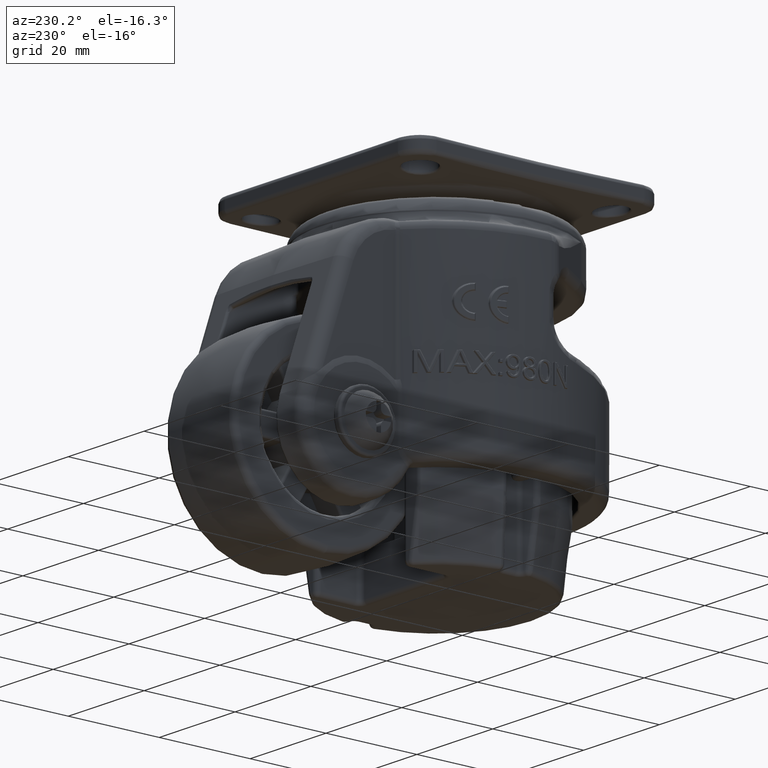
[diagram: clean part render]
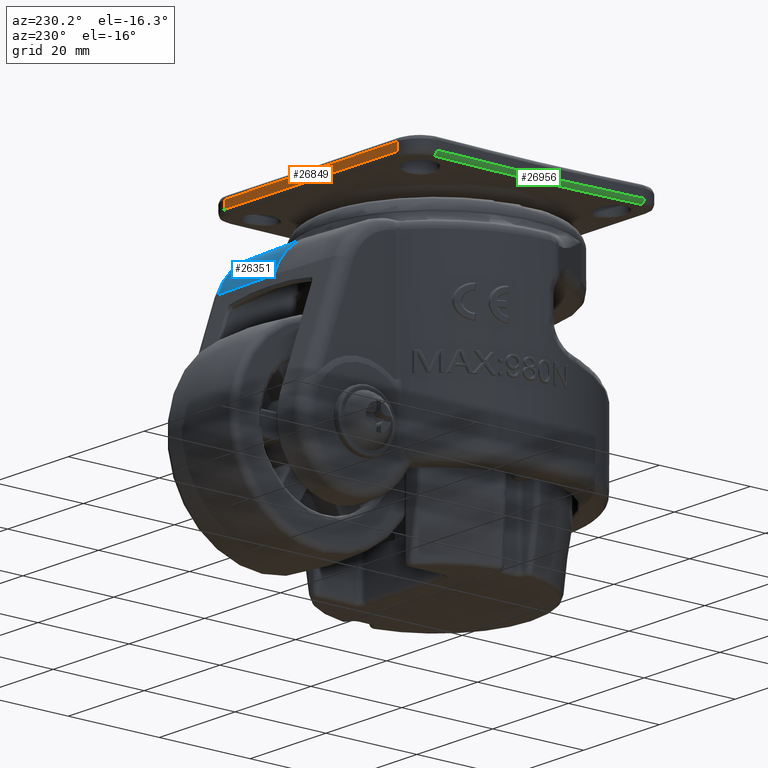
[diagram: same view with three faces highlighted in distinct colors, each labeled with its STEP entity id]
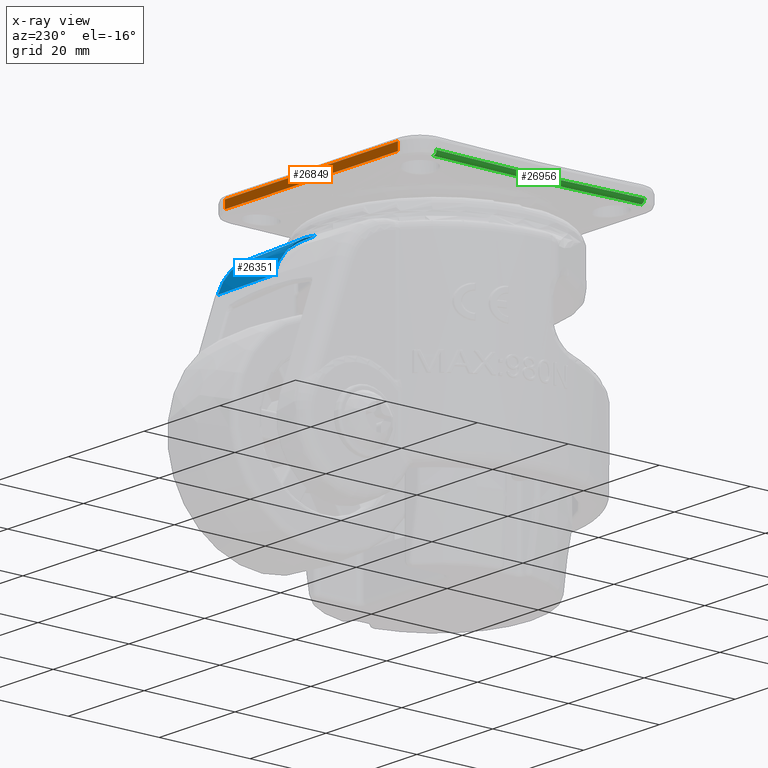
[diagram: x-ray of the same camera — body ghosted, the three highlighted faces saturated]
A machine part, auxiliary view with three faces highlighted in distinct colors.
The next image is the same camera in x-ray (body ghosted, the three faces saturated) — at least one of them is partly hidden behind the body in this view.
Their STEP definitions:

[orange] entity #26849 — the highlighted planar face has unit normal (0, 1, 0).
#2781=B_SPLINE_CURVE_WITH_KNOTS('',3,(#79250,#79251,#79252,#79253,#79254,
#79255,#79256,#79257,#79258,#79259,#79260,#79261,#79262,#79263,#79264,#79265,
#79266,#79267),.UNSPECIFIED.,.F.,.F.,(4,2,2,2,2,2,2,2,4),(0.,0.165469812225216,
0.356299101858044,0.500000722665542,0.674332169142147,0.824515417149564,
0.869565217391304,0.985094187170571,1.),.UNSPECIFIED.);
#2782=B_SPLINE_CURVE_WITH_KNOTS('',3,(#79270,#79271,#79272,#79273,#79274,
#79275,#79276),.UNSPECIFIED.,.F.,.F.,(4,3,4),(0.,0.499996307109869,1.),
 .UNSPECIFIED.);
#3174=PLANE('',#29462);
#4102=LINE('',#79248,#5066);
#4103=LINE('',#79269,#5067);
#5066=VECTOR('',#35483,1.7448966188433);
#5067=VECTOR('',#35484,1.7450908023597);
#7297=FACE_OUTER_BOUND('',#9045,.T.);
#9045=EDGE_LOOP('',(#16620,#16621,#16622,#16623));
#16620=ORIENTED_EDGE('',*,*,#21088,.T.);
#16621=ORIENTED_EDGE('',*,*,#21089,.T.);
#16622=ORIENTED_EDGE('',*,*,#21090,.T.);
#16623=ORIENTED_EDGE('',*,*,#21091,.T.);
#21088=EDGE_CURVE('',#23805,#23806,#4102,.T.);
#21089=EDGE_CURVE('',#23806,#23807,#2781,.T.);
#21090=EDGE_CURVE('',#23807,#23808,#4103,.T.);
#21091=EDGE_CURVE('',#23808,#23805,#2782,.T.);
#23805=VERTEX_POINT('',#79246);
#23806=VERTEX_POINT('',#79247);
#23807=VERTEX_POINT('',#79249);
#23808=VERTEX_POINT('',#79268);
#26849=ADVANCED_FACE('',(#7297),#3174,.T.);
#29462=AXIS2_PLACEMENT_3D('',#79245,#35481,#35482);
#35481=DIRECTION('center_axis',(0.,1.,0.));
#35482=DIRECTION('ref_axis',(0.,0.,-1.));
#35483=DIRECTION('',(0.,0.,-1.));
#35484=DIRECTION('',(0.,0.,1.));
#79245=CARTESIAN_POINT('Origin',(-16.4732984111631,20.7032248653305,37.4738037996507));
#79246=CARTESIAN_POINT('',(33.8755387981392,20.7032248653305,18.230190703546));
#79247=CARTESIAN_POINT('',(33.8755387981392,20.7032248653305,16.4852940847027));
#79248=CARTESIAN_POINT('',(33.8755387981392,20.7032248653305,37.4738037996507));
#79249=CARTESIAN_POINT('',(-11.8221356204654,20.7032248653305,16.4715453922281));
#79250=CARTESIAN_POINT('Ctrl Pts',(33.8755387981392,20.7032248653305,16.4852940847027));
#79251=CARTESIAN_POINT('Ctrl Pts',(31.35501457006,20.7032248653305,16.4702202875834));
#79252=CARTESIAN_POINT('Ctrl Pts',(28.8344935833261,20.7032249420049,16.4584616257449));
#79253=CARTESIAN_POINT('Ctrl Pts',(23.4071692357886,20.7032237844586,16.4388899711993));
#79254=CARTESIAN_POINT('Ctrl Pts',(20.5003652244757,20.7032221297623,16.4319560786226));
#79255=CARTESIAN_POINT('Ctrl Pts',(15.4046084182842,20.7032176912324,16.4241607293681));
#79256=CARTESIAN_POINT('Ctrl Pts',(13.2156597329096,20.7032153567104,16.422220374158));
#79257=CARTESIAN_POINT('Ctrl Pts',(8.37120764508329,20.7032113203994,16.4200273903639));
#79258=CARTESIAN_POINT('Ctrl Pts',(5.71567679897292,20.7032100116818,16.4202191078728));
#79259=CARTESIAN_POINT('Ctrl Pts',(0.772467524925848,20.7032124064208,16.42544533591));
#79260=CARTESIAN_POINT('Ctrl Pts',(-1.51521101455265,20.703215682146,16.4298049433254));
#79261=CARTESIAN_POINT('Ctrl Pts',(-4.48911184516033,20.7032204991226,16.4390644412167));
#79262=CARTESIAN_POINT('Ctrl Pts',(-5.17533603435959,20.7032216136618,16.4414500224505));
#79263=CARTESIAN_POINT('Ctrl Pts',(-7.6213645561806,20.7032249961005,16.4509229850987));
#79264=CARTESIAN_POINT('Ctrl Pts',(-9.38116893726732,20.7032248590407,16.4588768394186));
#79265=CARTESIAN_POINT('Ctrl Pts',(-11.3680275447412,20.7032248655091,16.4691425249283));
#79266=CARTESIAN_POINT('Ctrl Pts',(-11.5950815750752,20.7032248653305,16.4703345496273));
#79267=CARTESIAN_POINT('Ctrl Pts',(-11.8221356204654,20.7032248653305,16.4715453922281));
#79268=CARTESIAN_POINT('',(-11.8221356204654,20.7032248653305,18.2166361945878));
#79269=CARTESIAN_POINT('',(-11.8221356204654,20.7032248653305,37.4738037996507));
#79270=CARTESIAN_POINT('Ctrl Pts',(-11.8221356204654,20.7032248653305,18.2166361945878));
#79271=CARTESIAN_POINT('Ctrl Pts',(-4.20599563154104,20.7032248653305,18.1810443432043));
#79272=CARTESIAN_POINT('Ctrl Pts',(3.41039426982293,20.7032248653305,18.1934868174966));
#79273=CARTESIAN_POINT('Ctrl Pts',(11.0267098687725,20.7032248653305,18.1954984725353));
#79274=CARTESIAN_POINT('Ctrl Pts',(18.6431379734198,20.7032248653305,18.1975101572894));
#79275=CARTESIAN_POINT('Ctrl Pts',(26.2593139274777,20.7032248653305,18.1891107917544));
#79276=CARTESIAN_POINT('Ctrl Pts',(33.8755387981392,20.7032248653305,18.230190703546));

[blue] entity #26351 — the highlighted conical surface has half-angle 1.5 deg.
#937=CONICAL_SURFACE('',#28653,12.7999966792559,0.0261799387799149);
#2438=B_SPLINE_CURVE_WITH_KNOTS('',3,(#65092,#65093,#65094,#65095),
 .UNSPECIFIED.,.F.,.F.,(4,4),(1.11764550295535E-5,0.999999861120427),
 .UNSPECIFIED.);
#2445=B_SPLINE_CURVE_WITH_KNOTS('',3,(#65418,#65419,#65420,#65421,#65422,
#65423,#65424,#65425,#65426,#65427,#65428,#65429,#65430,#65431,#65432,#65433,
#65434,#65435,#65436,#65437,#65438,#65439,#65440,#65441,#65442,#65443,#65444,
#65445,#65446,#65447,#65448,#65449,#65450,#65451,#65452,#65453,#65454,#65455,
#65456,#65457,#65458,#65459,#65460,#65461,#65462,#65463,#65464,#65465,#65466,
#65467,#65468,#65469,#65470,#65471,#65472,#65473,#65474,#65475,#65476,#65477,
#65478),.UNSPECIFIED.,.F.,.F.,(4,3,3,3,3,3,3,3,3,3,3,3,3,3,3,3,3,3,3,3,
4),(0.,0.0528728201026942,0.112830711117299,0.181617793075896,0.245780574850599,
0.309995476943665,0.375783971466003,0.398184977157559,0.458570128777303,
0.498774054982897,0.5,0.562527325156512,0.625994699037756,0.694070730113794,
0.750109300626047,0.822601510278171,0.87637377823904,0.912233647357117,
0.956116823678559,0.995401458969703,1.),.UNSPECIFIED.);
#3785=LINE('',#65097,#4749);
#4749=VECTOR('',#33534,4.36706665520487);
#6799=FACE_OUTER_BOUND('',#8505,.T.);
#8505=EDGE_LOOP('',(#14302,#14303,#14304,#14305,#14306));
#14302=ORIENTED_EDGE('',*,*,#19921,.F.);
#14303=ORIENTED_EDGE('',*,*,#19922,.T.);
#14304=ORIENTED_EDGE('',*,*,#19923,.F.);
#14305=ORIENTED_EDGE('',*,*,#19906,.T.);
#14306=ORIENTED_EDGE('',*,*,#19905,.T.);
#19905=EDGE_CURVE('',#23091,#23090,#2438,.T.);
#19906=EDGE_CURVE('',#23092,#23091,#3785,.T.);
#19921=EDGE_CURVE('',#23104,#23090,#24681,.T.);
#19922=EDGE_CURVE('',#23104,#23105,#2445,.T.);
#19923=EDGE_CURVE('',#23092,#23105,#24682,.T.);
#23090=VERTEX_POINT('',#65089);
#23091=VERTEX_POINT('',#65091);
#23092=VERTEX_POINT('',#65096);
#23104=VERTEX_POINT('',#65415);
#23105=VERTEX_POINT('',#65417);
#24681=CIRCLE('',#28654,13.1684986296782);
#24682=CIRCLE('',#28655,12.7687589530383);
#26351=ADVANCED_FACE('',(#6799),#937,.T.);
#28653=AXIS2_PLACEMENT_3D('',#65414,#33551,#33552);
#28654=AXIS2_PLACEMENT_3D('',#65416,#33553,#33554);
#28655=AXIS2_PLACEMENT_3D('',#65479,#33555,#33556);
#33534=DIRECTION('',(-0.999657324975557,0.0248200765152126,0.00831843882540799));
#33551=DIRECTION('center_axis',(-1.,0.,0.));
#33552=DIRECTION('ref_axis',(0.,0.,1.));
#33553=DIRECTION('center_axis',(-1.,0.,0.));
#33554=DIRECTION('ref_axis',(0.,0.,-1.));
#33555=DIRECTION('center_axis',(1.,0.,0.));
#33556=DIRECTION('ref_axis',(0.,0.,1.));
#65089=CARTESIAN_POINT('',(11.0266992208081,28.9641649491868,-1.72115441002001));
#65091=CARTESIAN_POINT('',(21.9265700283018,28.6630462527609,-1.72033563895281));
#65092=CARTESIAN_POINT('Ctrl Pts',(21.9265677740616,28.6628815348712,-1.7198440650764));
#65093=CARTESIAN_POINT('Ctrl Pts',(18.2932790457329,28.7631385366324,-1.71957913541645));
#65094=CARTESIAN_POINT('Ctrl Pts',(14.6599918311908,28.863507810867,-1.72001538079841));
#65095=CARTESIAN_POINT('Ctrl Pts',(11.0267031028612,28.963981824618,-1.72115441123941));
#65096=CARTESIAN_POINT('',(26.2921439596066,28.5549301248205,-1.75748291364163));
#65097=CARTESIAN_POINT('',(25.0992233234121,28.5845486558182,-1.74755627469463));
#65414=CARTESIAN_POINT('Origin',(25.0992233234121,16.4480347567526,-5.81510410683514));
#65415=CARTESIAN_POINT('',(11.0267018633934,19.6534887684303,6.95730578651104));
#65416=CARTESIAN_POINT('Origin',(11.0267015888369,16.4480347567526,-5.81510410683514));
#65417=CARTESIAN_POINT('',(26.2921439596065,15.2262065805529,6.89506273347972));
#65418=CARTESIAN_POINT('Ctrl Pts',(11.026702687063,19.6534802318253,6.95730657826148));
#65419=CARTESIAN_POINT('Ctrl Pts',(11.3104056071294,19.6625803568707,6.9473633475713));
#65420=CARTESIAN_POINT('Ctrl Pts',(11.5943630619042,19.6660526749551,6.93881471416357));
#65421=CARTESIAN_POINT('Ctrl Pts',(11.878279416733,19.6639604970512,6.93167498155964));
#65422=CARTESIAN_POINT('Ctrl Pts',(12.2002411699935,19.6615879628362,6.92357850952528));
#65423=CARTESIAN_POINT('Ctrl Pts',(12.5221500513247,19.6520598456473,6.91729517315748));
#65424=CARTESIAN_POINT('Ctrl Pts',(12.843597486107,19.6353881515134,6.91279282456565));
#65425=CARTESIAN_POINT('Ctrl Pts',(13.2123801545361,19.6162614415613,6.90762747574581));
#65426=CARTESIAN_POINT('Ctrl Pts',(13.5805558975279,19.5877317952847,6.90480927661297));
#65427=CARTESIAN_POINT('Ctrl Pts',(13.947532438502,19.5497192850892,6.90418766570537));
#65428=CARTESIAN_POINT('Ctrl Pts',(14.2898385088355,19.5142622148525,6.90360784339168));
#65429=CARTESIAN_POINT('Ctrl Pts',(14.6311015848665,19.4705505116996,6.90493910574866));
#65430=CARTESIAN_POINT('Ctrl Pts',(14.9708526603924,19.418478474629,6.90796037479291));
#65431=CARTESIAN_POINT('Ctrl Pts',(15.3108797204335,19.3663641387197,6.91098409805594));
#65432=CARTESIAN_POINT('Ctrl Pts',(15.649708064804,19.3066558874023,6.91550399402615));
#65433=CARTESIAN_POINT('Ctrl Pts',(15.9873615382236,19.2401000540537,6.92104287261713));
#65434=CARTESIAN_POINT('Ctrl Pts',(16.3332892428912,19.1719132635275,6.92671748196737));
#65435=CARTESIAN_POINT('Ctrl Pts',(16.6779847595867,19.0965382851746,6.93345968892035));
#65436=CARTESIAN_POINT('Ctrl Pts',(17.0214991662681,19.0148182562812,6.94072819663785));
#65437=CARTESIAN_POINT('Ctrl Pts',(17.138465943439,18.9869925574923,6.94320312609065));
#65438=CARTESIAN_POINT('Ctrl Pts',(17.2552959362809,18.9584315967874,6.94573897642672));
#65439=CARTESIAN_POINT('Ctrl Pts',(17.3719916749097,18.929169770471,6.94831431910336));
#65440=CARTESIAN_POINT('Ctrl Pts',(17.6865619208844,18.8502902842946,6.95525652786588));
#65441=CARTESIAN_POINT('Ctrl Pts',(17.9997391379873,18.7656850308665,6.96262130919863));
#65442=CARTESIAN_POINT('Ctrl Pts',(18.3113272741402,18.6756899237263,6.97001973301409));
#65443=CARTESIAN_POINT('Ctrl Pts',(18.5187800352313,18.6157719381077,6.97494554138148));
#65444=CARTESIAN_POINT('Ctrl Pts',(18.7255281170159,18.5534634578241,6.97988617075189));
#65445=CARTESIAN_POINT('Ctrl Pts',(18.9315063475126,18.4888544834789,6.98472564285214));
#65446=CARTESIAN_POINT('Ctrl Pts',(18.9377872759975,18.4868843512646,6.98487321368083));
#65447=CARTESIAN_POINT('Ctrl Pts',(18.9440674824198,18.4849120254256,6.98502069916877));
#65448=CARTESIAN_POINT('Ctrl Pts',(18.9503469656427,18.4829375061065,6.98516809628791));
#65449=CARTESIAN_POINT('Ctrl Pts',(19.2706217608522,18.3822303701656,6.992685845834));
#65450=CARTESIAN_POINT('Ctrl Pts',(19.5891300175473,18.2760583473292,6.99993267361086));
#65451=CARTESIAN_POINT('Ctrl Pts',(19.9057778467855,18.1647599804691,7.00646909094825));
#65452=CARTESIAN_POINT('Ctrl Pts',(20.2271862249088,18.051788330967,7.01310377813432));
#65453=CARTESIAN_POINT('Ctrl Pts',(20.5466771043208,17.9335353281377,7.01900564502673));
#65454=CARTESIAN_POINT('Ctrl Pts',(20.8641909193985,17.8103964424452,7.02371117735635));
#65455=CARTESIAN_POINT('Ctrl Pts',(21.2047608692872,17.6783158773228,7.02875839997657));
#65456=CARTESIAN_POINT('Ctrl Pts',(21.543057726373,17.5406138098491,7.03242796471176));
#65457=CARTESIAN_POINT('Ctrl Pts',(21.8790453502799,17.3978271705707,7.0341603240959));
#65458=CARTESIAN_POINT('Ctrl Pts',(22.1556223753494,17.2802886033696,7.03558636116013));
#65459=CARTESIAN_POINT('Ctrl Pts',(22.4306355650037,17.1593062399357,7.03569966359163));
#65460=CARTESIAN_POINT('Ctrl Pts',(22.7040699962215,17.0351988823396,7.03420329005894));
#65461=CARTESIAN_POINT('Ctrl Pts',(23.0577882644206,16.8746520214189,7.03226756216907));
#65462=CARTESIAN_POINT('Ctrl Pts',(23.4088583802479,16.70813315294,7.02765724129421));
#65463=CARTESIAN_POINT('Ctrl Pts',(23.7579767686786,16.5373578459675,7.01970353387737));
#65464=CARTESIAN_POINT('Ctrl Pts',(24.0169409749409,16.4106825023451,7.01380374287151));
#65465=CARTESIAN_POINT('Ctrl Pts',(24.2748338371838,16.2816668419493,7.00606833246404));
#65466=CARTESIAN_POINT('Ctrl Pts',(24.5319256596763,16.1510041513222,6.99630494203876));
#65467=CARTESIAN_POINT('Ctrl Pts',(24.7033761016145,16.0638672838962,6.98979389245732));
#65468=CARTESIAN_POINT('Ctrl Pts',(24.8744698680058,15.9759978714706,6.98238242198049));
#65469=CARTESIAN_POINT('Ctrl Pts',(25.0452771486901,15.8875935770345,6.97403136022699));
#65470=CARTESIAN_POINT('Ctrl Pts',(25.2543009460323,15.7794096562417,6.96381182723892));
#65471=CARTESIAN_POINT('Ctrl Pts',(25.4626971162212,15.6700968774624,6.95217698722901));
#65472=CARTESIAN_POINT('Ctrl Pts',(25.6704939815146,15.5598088273342,6.93904176030774));
#65473=CARTESIAN_POINT('Ctrl Pts',(25.8565157044613,15.4610779197417,6.92728298069504));
#65474=CARTESIAN_POINT('Ctrl Pts',(26.0420564305969,15.3615646037666,6.91432166512246));
#65475=CARTESIAN_POINT('Ctrl Pts',(26.2271590918787,15.2614056534408,6.90010632681752));
#65476=CARTESIAN_POINT('Ctrl Pts',(26.2488266516362,15.2496813485259,6.8984423221508));
#65477=CARTESIAN_POINT('Ctrl Pts',(26.270488242098,15.2379482389064,6.89676114800464));
#65478=CARTESIAN_POINT('Ctrl Pts',(26.2921439596065,15.2262065805529,6.8950627334797));
#65479=CARTESIAN_POINT('Origin',(26.2921439596065,16.4480347567526,-5.81510410683514));

[green] entity #26956 — the highlighted face is a freeform B-spline surface patch.
#642=(
BOUNDED_SURFACE()
B_SPLINE_SURFACE(3,2,((#80681,#80682,#80683),(#80684,#80685,#80686),(#80687,
#80688,#80689),(#80690,#80691,#80692),(#80693,#80694,#80695),(#80696,#80697,
#80698),(#80699,#80700,#80701),(#80702,#80703,#80704),(#80705,#80706,#80707),
(#80708,#80709,#80710)),.UNSPECIFIED.,.F.,.F.,.F.)
B_SPLINE_SURFACE_WITH_KNOTS((4,2,2,2,4),(3,3),(0.,0.25,0.5,0.75,1.),(0.,
1.),.UNSPECIFIED.)
GEOMETRIC_REPRESENTATION_ITEM()
RATIONAL_B_SPLINE_SURFACE(((1.,0.725708445592342,1.),(1.,0.739844256178472,
1.),(1.,0.748449401013622,1.),(1.,0.759388890731041,1.),(1.,0.761763225432459,
1.),(1.,0.761763225161841,1.),(1.,0.759388890528774,1.),(1.,0.748449400774082,
1.),(1.,0.739844255932192,1.),(1.,0.725708445592345,1.)))
REPRESENTATION_ITEM('')
SURFACE()
);
#2770=B_SPLINE_CURVE_WITH_KNOTS('',3,(#78734,#78735,#78736,#78737,#78738,
#78739,#78740,#78741,#78742,#78743,#78744,#78745,#78746),.UNSPECIFIED.,
 .F.,.F.,(4,3,3,3,4),(0.,0.249703677268069,0.500000000102878,0.750296322906377,
1.),.UNSPECIFIED.);
#2779=B_SPLINE_CURVE_WITH_KNOTS('',3,(#79191,#79192,#79193,#79194,#79195,
#79196,#79197,#79198,#79199,#79200,#79201,#79202,#79203,#79204,#79205,#79206,
#79207,#79208,#79209),.UNSPECIFIED.,.F.,.F.,(4,3,3,3,3,3,4),(0.,0.249998725887605,
0.394273317885802,0.500010990490887,0.74999946981925,0.898896862419174,
1.),.UNSPECIFIED.);
#7404=FACE_OUTER_BOUND('',#9177,.T.);
#9177=EDGE_LOOP('',(#17022,#17023,#17024,#17025));
#17022=ORIENTED_EDGE('',*,*,#21262,.T.);
#17023=ORIENTED_EDGE('',*,*,#21085,.F.);
#17024=ORIENTED_EDGE('',*,*,#21263,.F.);
#17025=ORIENTED_EDGE('',*,*,#21019,.F.);
#21019=EDGE_CURVE('',#23741,#23742,#2770,.T.);
#21085=EDGE_CURVE('',#23802,#23803,#2779,.T.);
#21262=EDGE_CURVE('',#23741,#23803,#25282,.T.);
#21263=EDGE_CURVE('',#23742,#23802,#25283,.T.);
#23741=VERTEX_POINT('',#78716);
#23742=VERTEX_POINT('',#78733);
#23802=VERTEX_POINT('',#79188);
#23803=VERTEX_POINT('',#79190);
#25282=CIRCLE('',#29679,0.872093023255813);
#25283=CIRCLE('',#29680,0.872093023255813);
#26956=ADVANCED_FACE('',(#7404),#642,.T.);
#29679=AXIS2_PLACEMENT_3D('',#80680,#35945,#35946);
#29680=AXIS2_PLACEMENT_3D('',#80711,#35947,#35948);
#35945=DIRECTION('center_axis',(1.1556203140056E-15,0.99999803503446,-0.00198240440340946));
#35946=DIRECTION('ref_axis',(1.92747068834275E-30,-0.00198240440340946,
-0.99999803503446));
#35947=DIRECTION('center_axis',(-1.85022478331454E-14,0.99999803503446,
0.00198240440341617));
#35948=DIRECTION('ref_axis',(-1.96598928723049E-29,0.00198240440341617,
-0.99999803503446));
#78716=CARTESIAN_POINT('',(-15.6476927390771,-29.6473387270439,15.6488304073646));
#78733=CARTESIAN_POINT('',(-15.6476927390772,16.0537884577049,15.6488304073648));
#78734=CARTESIAN_POINT('Ctrl Pts',(-15.6476927390772,-29.6473387270439,
15.6488304073646));
#78735=CARTESIAN_POINT('Ctrl Pts',(-15.6837157065505,-25.8431380787264,
15.6432118883168));
#78736=CARTESIAN_POINT('Ctrl Pts',(-15.7061358539403,-22.0389433349496,
15.5652717758004));
#78737=CARTESIAN_POINT('Ctrl Pts',(-15.7204973855042,-18.2352440083695,
15.5064948663133));
#78738=CARTESIAN_POINT('Ctrl Pts',(-15.7348930026615,-14.4225169991867,
15.4475784559778));
#78739=CARTESIAN_POINT('Ctrl Pts',(-15.7412342452288,-10.6102121794958,
15.4056078683672));
#78740=CARTESIAN_POINT('Ctrl Pts',(-15.7412342450342,-6.79677496951791,
15.4056078694558));
#78741=CARTESIAN_POINT('Ctrl Pts',(-15.7412342448397,-2.98333776001711,
15.4056078705445));
#78742=CARTESIAN_POINT('Ctrl Pts',(-15.7348930020737,0.82896692897564,15.4475784587104));
#78743=CARTESIAN_POINT('Ctrl Pts',(-15.7204973848045,4.64169389289989,15.5064948686746));
#78744=CARTESIAN_POINT('Ctrl Pts',(-15.7061358531372,8.44539317214707,15.5652717777576));
#78745=CARTESIAN_POINT('Ctrl Pts',(-15.6837157058994,12.2495878781142,15.6432118884184));
#78746=CARTESIAN_POINT('Ctrl Pts',(-15.6476927390772,16.0537884577049,15.6488304073648));
#79188=CARTESIAN_POINT('',(-16.4732984111631,16.0520620746328,16.5196818223571));
#79190=CARTESIAN_POINT('',(-16.4732984111631,-29.6456123439718,16.519681822357));
#79191=CARTESIAN_POINT('Ctrl Pts',(-16.4732984111631,16.0520620746328,16.5196818223571));
#79192=CARTESIAN_POINT('Ctrl Pts',(-16.4732984111631,12.243715468775,16.5121321237128));
#79193=CARTESIAN_POINT('Ctrl Pts',(-16.4732984111631,8.43590101166749,16.4311093742422));
#79194=CARTESIAN_POINT('Ctrl Pts',(-16.4732984111631,4.62789578485973,16.3702803008869));
#79195=CARTESIAN_POINT('Ctrl Pts',(-16.4732984111631,2.43029098317889,16.3351757630186));
#79196=CARTESIAN_POINT('Ctrl Pts',(-16.4732984111631,0.23262305750846,16.3059868931338));
#79197=CARTESIAN_POINT('Ctrl Pts',(-16.4732984111631,-1.96511610513967,
16.2875776343776));
#79198=CARTESIAN_POINT('Ctrl Pts',(-16.4732984111631,-3.57582122537572,
16.2740856386748));
#79199=CARTESIAN_POINT('Ctrl Pts',(-16.4732984111631,-5.18652307050694,
16.2663839173211));
#79200=CARTESIAN_POINT('Ctrl Pts',(-16.4732984111631,-6.79727728974058,
16.2663853917954));
#79201=CARTESIAN_POINT('Ctrl Pts',(-16.473298411163,-10.6054753322857,16.2663888777958));
#79202=CARTESIAN_POINT('Ctrl Pts',(-16.4732984111631,-14.4135765919629,
16.3094530937355));
#79203=CARTESIAN_POINT('Ctrl Pts',(-16.4732984111631,-18.2214459030804,
16.3702801313399));
#79204=CARTESIAN_POINT('Ctrl Pts',(-16.4732984111631,-20.4894776672239,
16.4065097500936));
#79205=CARTESIAN_POINT('Ctrl Pts',(-16.4732984111631,-22.7574267392534,
16.4499031136371));
#79206=CARTESIAN_POINT('Ctrl Pts',(-16.4732984111631,-25.0254084652647,
16.4806689264087));
#79207=CARTESIAN_POINT('Ctrl Pts',(-16.4732984111631,-26.5653955964822,
16.5015592868585));
#79208=CARTESIAN_POINT('Ctrl Pts',(-16.4732984111631,-28.1054613090518,
16.5166286138827));
#79209=CARTESIAN_POINT('Ctrl Pts',(-16.4732984111631,-29.6456123439718,
16.519681822357));
#80680=CARTESIAN_POINT('Origin',(-15.6012053879072,-29.6456123439718,16.519681822357));
#80681=CARTESIAN_POINT('Ctrl Pts',(-16.4732984111631,-29.6456123439718,
16.519681822357));
#80682=CARTESIAN_POINT('Ctrl Pts',(-16.4732984111631,-29.6472513585584,
15.6929022998986));
#80683=CARTESIAN_POINT('Ctrl Pts',(-15.6476927390772,-29.6473387270439,
15.6488304073646));
#80684=CARTESIAN_POINT('Ctrl Pts',(-16.4732984111631,-25.8371141858277,
16.5121318233068));
#80685=CARTESIAN_POINT('Ctrl Pts',(-16.4732984109492,-25.9227454443322,
15.7190438979088));
#80686=CARTESIAN_POINT('Ctrl Pts',(-15.6836401701025,-25.8511150670914,
15.6432236697162));
#80687=CARTESIAN_POINT('Ctrl Pts',(-16.4732984111631,-22.0293791318198,
16.4311082213745));
#80688=CARTESIAN_POINT('Ctrl Pts',(-16.4732984111431,-22.0713163082313,
15.6588676351743));
#80689=CARTESIAN_POINT('Ctrl Pts',(-15.7061122270023,-22.0452009403543,
15.56536847182));
#80690=CARTESIAN_POINT('Ctrl Pts',(-16.4732984111631,-14.4135126690028,
16.309452375486));
#80691=CARTESIAN_POINT('Ctrl Pts',(-16.4732984111828,-14.4511361221693,
15.5626960585024));
#80692=CARTESIAN_POINT('Ctrl Pts',(-15.7348825436246,-14.4252870763856,
15.4476212607539));
#80693=CARTESIAN_POINT('Ctrl Pts',(-16.4732984111631,-10.6053824537767,
16.2663855169705));
#80694=CARTESIAN_POINT('Ctrl Pts',(-16.4732984111829,-10.6104147154097,
15.5246979827563));
#80695=CARTESIAN_POINT('Ctrl Pts',(-15.7412342452251,-10.6112227284435,
15.4056078683663));
#80696=CARTESIAN_POINT('Ctrl Pts',(-16.4732984111631,-2.98816748576488,
16.2663855192037));
#80697=CARTESIAN_POINT('Ctrl Pts',(-16.4732984111433,-2.98313522234133,
15.5246979846591));
#80698=CARTESIAN_POINT('Ctrl Pts',(-15.7412342448282,-2.98232721059232,
15.4056078705429));
#80699=CARTESIAN_POINT('Ctrl Pts',(-16.4732984111631,0.819962599331721,
16.3094523783191));
#80700=CARTESIAN_POINT('Ctrl Pts',(-16.4732984112025,0.857586052456186,
15.5626960608669));
#80701=CARTESIAN_POINT('Ctrl Pts',(-15.7348825431077,0.831737006929591,
15.4476212635107));
#80702=CARTESIAN_POINT('Ctrl Pts',(-16.4732984111631,8.43582897038771,16.4311082234548));
#80703=CARTESIAN_POINT('Ctrl Pts',(-16.4732984111232,8.47776614653638,15.6588676366901));
#80704=CARTESIAN_POINT('Ctrl Pts',(-15.7061122263573,8.45165077887052,15.5653684738187));
#80705=CARTESIAN_POINT('Ctrl Pts',(-16.4732984111631,12.2435639869558,16.512131823414));
#80706=CARTESIAN_POINT('Ctrl Pts',(-16.4732984111372,12.3291952426962,15.7190438974067));
#80707=CARTESIAN_POINT('Ctrl Pts',(-15.6836401696117,12.2575648680261,15.6432236698294));
#80708=CARTESIAN_POINT('Ctrl Pts',(-16.4732984111631,16.0520620746328,16.5196818223571));
#80709=CARTESIAN_POINT('Ctrl Pts',(-16.4732984111631,16.0537010892194,15.6929022998988));
#80710=CARTESIAN_POINT('Ctrl Pts',(-15.6476927390772,16.0537884577049,15.6488304073648));
#80711=CARTESIAN_POINT('Origin',(-15.6012053879073,16.0520620746328,16.5196818223571));